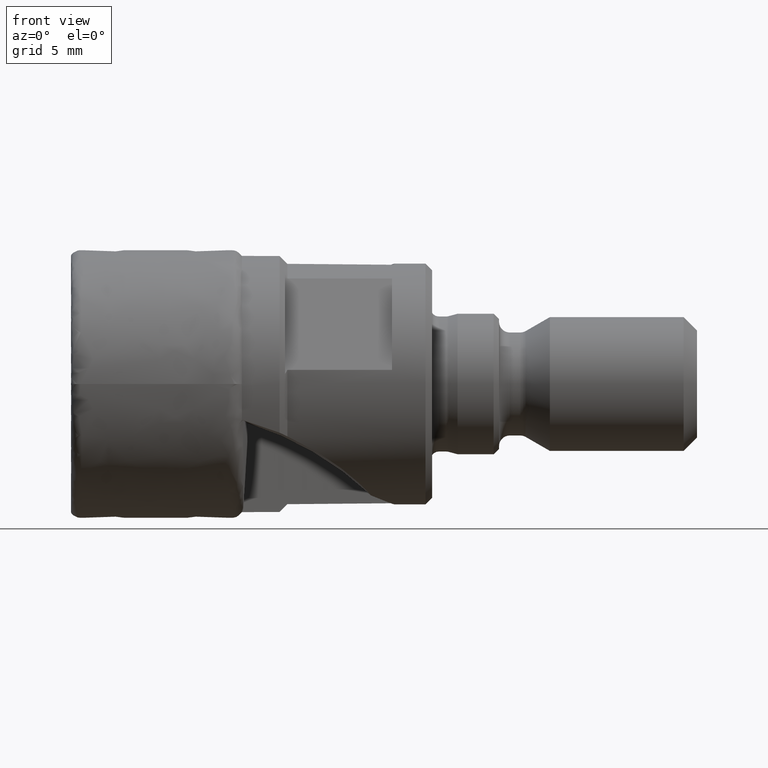
[diagram: clean part render]
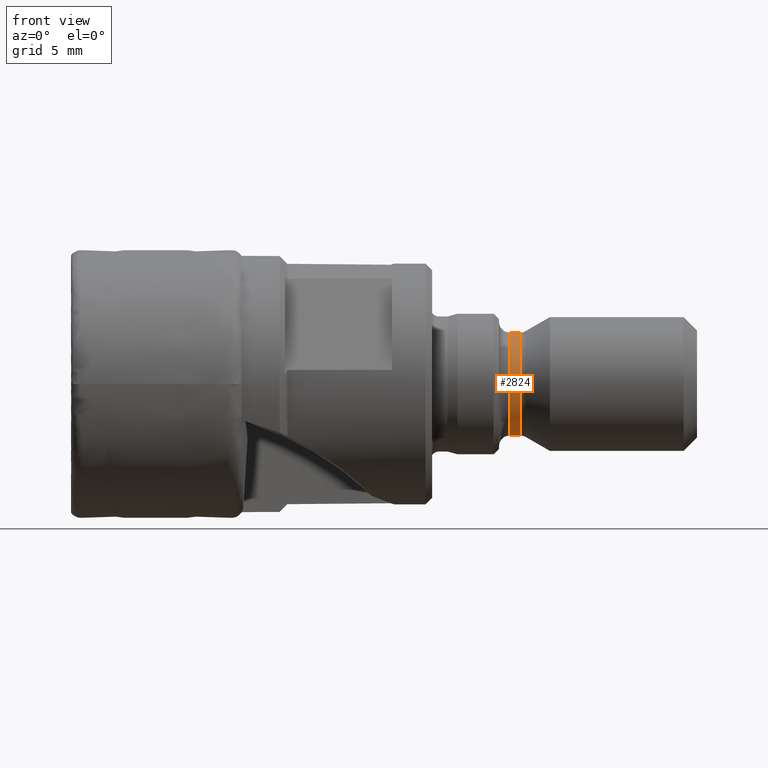
[diagram: same view with one face highlighted and labeled with its STEP entity id]
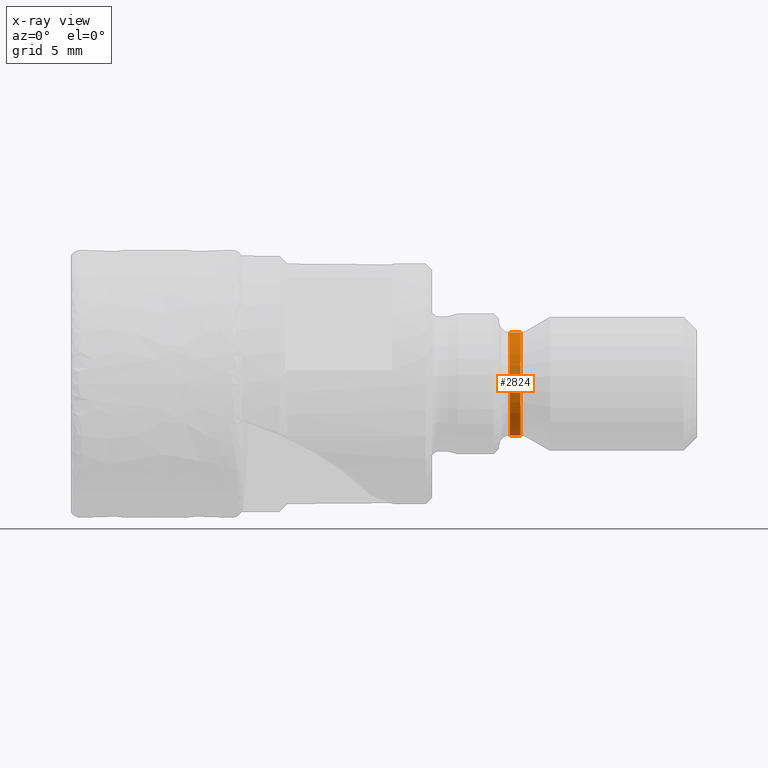
[diagram: x-ray of the same camera — body ghosted, the highlighted face saturated]
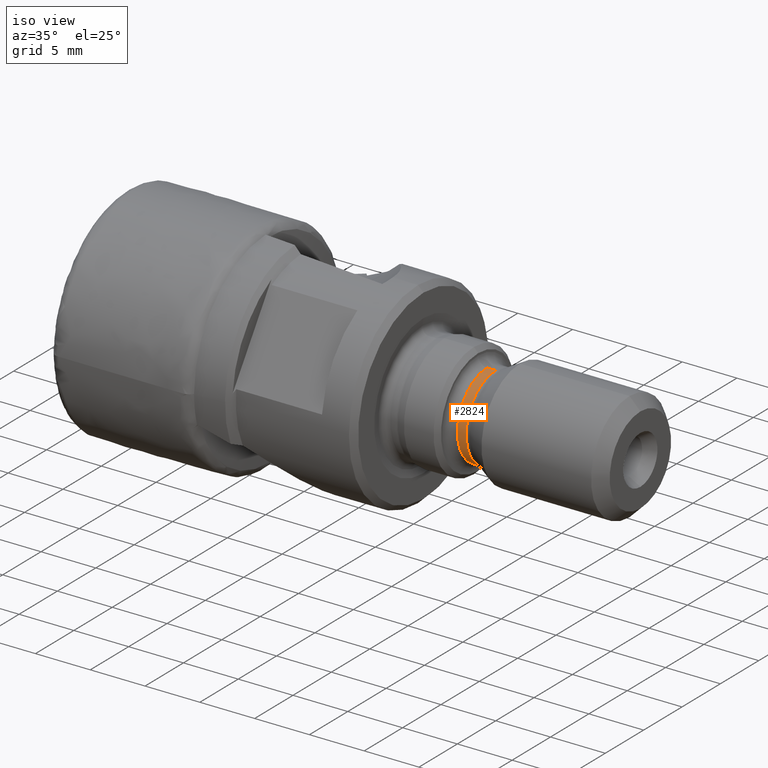
[diagram: same view with one face highlighted and labeled with its STEP entity id]
A machine part, front view. The second image highlights one B-rep face of the part: STEP entity #2824.
The next image is the same camera in x-ray: the body ghosted, the highlighted face saturated — about 0% of this face is hidden behind the body in this view.
A second angle (iso view) of the same face is appended — the face is thin or edge-on in the first view.
In plain terms, the highlighted cylindrical surface (partial cylindrical patch) has radius 3.85 mm, axis along (-1, -0, -0).
Its self-contained STEP definition (entity closure, byte-faithful):
#138 = DIRECTION ( 'NONE',  ( 0.0000000000000000000, 0.0000000000000000000, 1.000000000000000000 ) ) ;
#146 = CARTESIAN_POINT ( 'NONE',  ( 0.0000000000000000000, 0.0000000000000000000, 0.0000000000000000000 ) ) ;
#147 = DIRECTION ( 'NONE',  ( -1.000000000000000000, -0.0000000000000000000, -0.0000000000000000000 ) ) ;
#788 = CARTESIAN_POINT ( 'NONE',  ( 31.70000000000017300, 0.0000000000000000000, 3.849999999999999600 ) ) ;
#794 = CARTESIAN_POINT ( 'NONE',  ( 32.49378221735091200, 4.780518800886289200E-016, -3.849999999999998800 ) ) ;
#803 = CARTESIAN_POINT ( 'NONE',  ( 31.70000000000017300, 4.714890176717309500E-016, -3.850000000000000100 ) ) ;
#818 = CARTESIAN_POINT ( 'NONE',  ( 32.49378221735091200, 0.0000000000000000000, 3.849999999999998800 ) ) ;
#836 = FACE_OUTER_BOUND ( 'NONE', #1636, .T. ) ;
#846 = CYLINDRICAL_SURFACE ( 'NONE', #3420, 3.849999999999999200 ) ;
#1278 = CIRCLE ( 'NONE', #3542, 3.849999999999998800 ) ;
#1292 = LINE ( 'NONE', #2481, #1294 ) ;
#1294 = VECTOR ( 'NONE', #2480, 1000.000000000000000 ) ;
#1295 = CIRCLE ( 'NONE', #3511, 3.849999999999999600 ) ;
#1298 = LINE ( 'NONE', #2487, #1299 ) ;
#1299 = VECTOR ( 'NONE', #2494, 1000.000000000000000 ) ;
#1333 = VERTEX_POINT ( 'NONE', #788 ) ;
#1351 = VERTEX_POINT ( 'NONE', #803 ) ;
#1370 = VERTEX_POINT ( 'NONE', #794 ) ;
#1376 = VERTEX_POINT ( 'NONE', #818 ) ;
#1636 = EDGE_LOOP ( 'NONE', ( #1845, #1851, #1857, #1870 ) ) ;
#1845 = ORIENTED_EDGE ( 'NONE', *, *, #3626, .F. ) ;
#1851 = ORIENTED_EDGE ( 'NONE', *, *, #3605, .T. ) ;
#1857 = ORIENTED_EDGE ( 'NONE', *, *, #3621, .T. ) ;
#1870 = ORIENTED_EDGE ( 'NONE', *, *, #3624, .F. ) ;
#2424 = CARTESIAN_POINT ( 'NONE',  ( 32.49378221735091200, 0.0000000000000000000, 0.0000000000000000000 ) ) ;
#2425 = DIRECTION ( 'NONE',  ( -1.000000000000000000, -0.0000000000000000000, -0.0000000000000000000 ) ) ;
#2426 = DIRECTION ( 'NONE',  ( 0.0000000000000000000, 0.0000000000000000000, 1.000000000000000000 ) ) ;
#2480 = DIRECTION ( 'NONE',  ( -1.000000000000000000, -0.0000000000000000000, -0.0000000000000000000 ) ) ;
#2481 = CARTESIAN_POINT ( 'NONE',  ( 0.0000000000000000000, 0.0000000000000000000, 3.849999999999999200 ) ) ;
#2487 = CARTESIAN_POINT ( 'NONE',  ( 0.0000000000000000000, 4.714890176717308500E-016, -3.849999999999999200 ) ) ;
#2494 = DIRECTION ( 'NONE',  ( -1.000000000000000000, -0.0000000000000000000, -0.0000000000000000000 ) ) ;
#2495 = CARTESIAN_POINT ( 'NONE',  ( 31.70000000000017300, 0.0000000000000000000, 0.0000000000000000000 ) ) ;
#2496 = DIRECTION ( 'NONE',  ( -1.000000000000000000, -0.0000000000000000000, -0.0000000000000000000 ) ) ;
#2497 = DIRECTION ( 'NONE',  ( 0.0000000000000000000, 0.0000000000000000000, 1.000000000000000000 ) ) ;
#2824 = ADVANCED_FACE ( 'NONE', ( #836 ), #846, .T. ) ;
#3420 = AXIS2_PLACEMENT_3D ( 'NONE', #146, #147, #138 ) ;
#3511 = AXIS2_PLACEMENT_3D ( 'NONE', #2495, #2496, #2497 ) ;
#3542 = AXIS2_PLACEMENT_3D ( 'NONE', #2424, #2425, #2426 ) ;
#3605 = EDGE_CURVE ( 'NONE', #1370, #1376, #1278, .T. ) ;
#3621 = EDGE_CURVE ( 'NONE', #1376, #1333, #1292, .T. ) ;
#3624 = EDGE_CURVE ( 'NONE', #1351, #1333, #1295, .T. ) ;
#3626 = EDGE_CURVE ( 'NONE', #1370, #1351, #1298, .T. ) ;